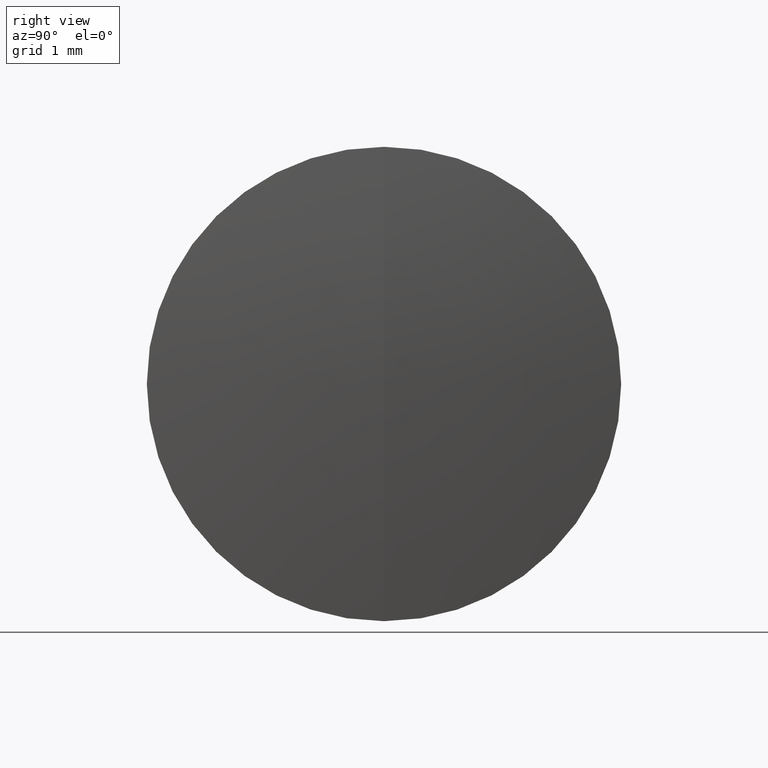
[diagram: clean part render]
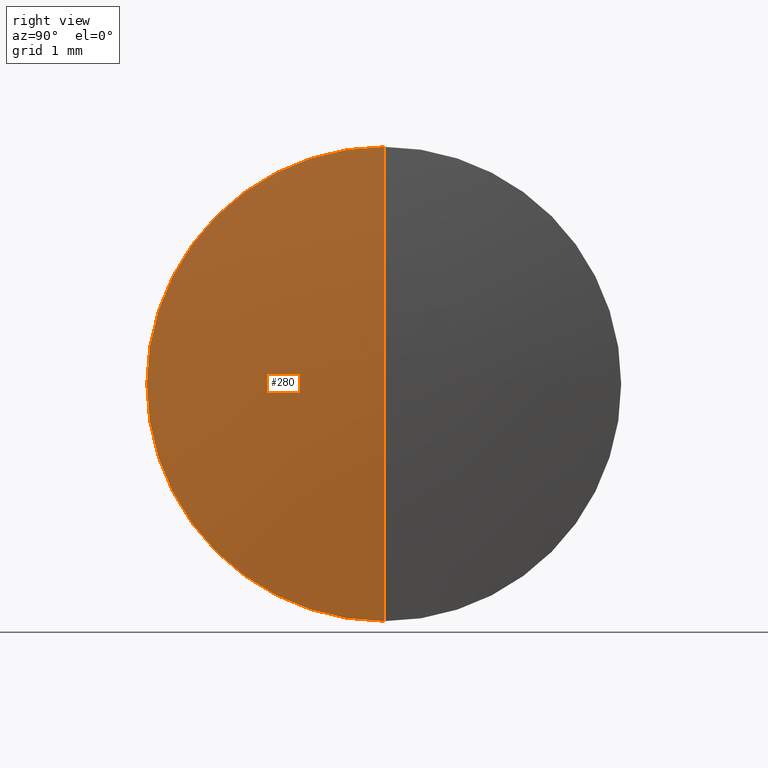
[diagram: same view with one face highlighted and labeled with its STEP entity id]
A machine part, right view. The second image highlights one B-rep face of the part: STEP entity #280.
In plain terms, the highlighted spherical surface has radius 29 mm.
Its self-contained STEP definition (entity closure, byte-faithful):
#18 = DIRECTION ( 'NONE',  ( 0.0000000000000000000, 1.000000000000000000, 0.0000000000000000000 ) ) ;
#24 = CARTESIAN_POINT ( 'NONE',  ( 234.8807127546714100, 0.0000000000000000000, 0.0000000000000000000 ) ) ;
#42 = DIRECTION ( 'NONE',  ( -0.0000000000000000000, 1.000000000000000000, 1.224646799147353200E-016 ) ) ;
#48 = DIRECTION ( 'NONE',  ( -1.000000000000000000, -0.0000000000000000000, -0.0000000000000000000 ) ) ;
#59 = FACE_OUTER_BOUND ( 'NONE', #204, .T. ) ;
#65 = EDGE_CURVE ( 'NONE', #342, #323, #263, .T. ) ;
#73 = AXIS2_PLACEMENT_3D ( 'NONE', #268, #48, #240 ) ;
#81 = DIRECTION ( 'NONE',  ( 0.0000000000000000000, -1.000000000000000000, 0.0000000000000000000 ) ) ;
#104 = DIRECTION ( 'NONE',  ( 0.0000000000000000000, 0.0000000000000000000, -1.000000000000000000 ) ) ;
#132 = ORIENTED_EDGE ( 'NONE', *, *, #65, .F. ) ;
#136 = CARTESIAN_POINT ( 'NONE',  ( 263.8807127546714400, 0.0000000000000000000, 1.775737858763664800E-015 ) ) ;
#164 = EDGE_CURVE ( 'NONE', #261, #323, #241, .T. ) ;
#177 = AXIS2_PLACEMENT_3D ( 'NONE', #237, #42, #211 ) ;
#204 = EDGE_LOOP ( 'NONE', ( #327, #276, #132 ) ) ;
#211 = DIRECTION ( 'NONE',  ( 0.0000000000000000000, -1.224646799147353200E-016, 1.000000000000000000 ) ) ;
#221 = AXIS2_PLACEMENT_3D ( 'NONE', #262, #18, #311 ) ;
#237 = CARTESIAN_POINT ( 'NONE',  ( 234.8807127546714100, 0.0000000000000000000, 0.0000000000000000000 ) ) ;
#240 = DIRECTION ( 'NONE',  ( 0.0000000000000000000, 0.0000000000000000000, 1.000000000000000000 ) ) ;
#241 = CIRCLE ( 'NONE', #320, 29.00000000000004300 ) ;
#254 = EDGE_CURVE ( 'NONE', #261, #342, #347, .T. ) ;
#256 = CARTESIAN_POINT ( 'NONE',  ( 263.7063849064184100, 0.0000000000000000000, 3.175000000000000700 ) ) ;
#261 = VERTEX_POINT ( 'NONE', #136 ) ;
#262 = CARTESIAN_POINT ( 'NONE',  ( 234.8807127546714100, 0.0000000000000000000, 0.0000000000000000000 ) ) ;
#263 = CIRCLE ( 'NONE', #73, 3.175000000000000700 ) ;
#268 = CARTESIAN_POINT ( 'NONE',  ( 263.7063849064184100, 0.0000000000000000000, 0.0000000000000000000 ) ) ;
#276 = ORIENTED_EDGE ( 'NONE', *, *, #164, .T. ) ;
#280 = ADVANCED_FACE ( 'NONE', ( #59 ), #335, .T. ) ;
#311 = DIRECTION ( 'NONE',  ( 0.0000000000000000000, 0.0000000000000000000, 1.000000000000000000 ) ) ;
#320 = AXIS2_PLACEMENT_3D ( 'NONE', #24, #81, #104 ) ;
#323 = VERTEX_POINT ( 'NONE', #256 ) ;
#327 = ORIENTED_EDGE ( 'NONE', *, *, #254, .F. ) ;
#333 = CARTESIAN_POINT ( 'NONE',  ( 263.7063849064184100, 3.888253587292847100E-016, -3.175000000000000700 ) ) ;
#335 = SPHERICAL_SURFACE ( 'NONE', #221, 29.00000000000004300 ) ;
#342 = VERTEX_POINT ( 'NONE', #333 ) ;
#347 = CIRCLE ( 'NONE', #177, 29.00000000000004300 ) ;